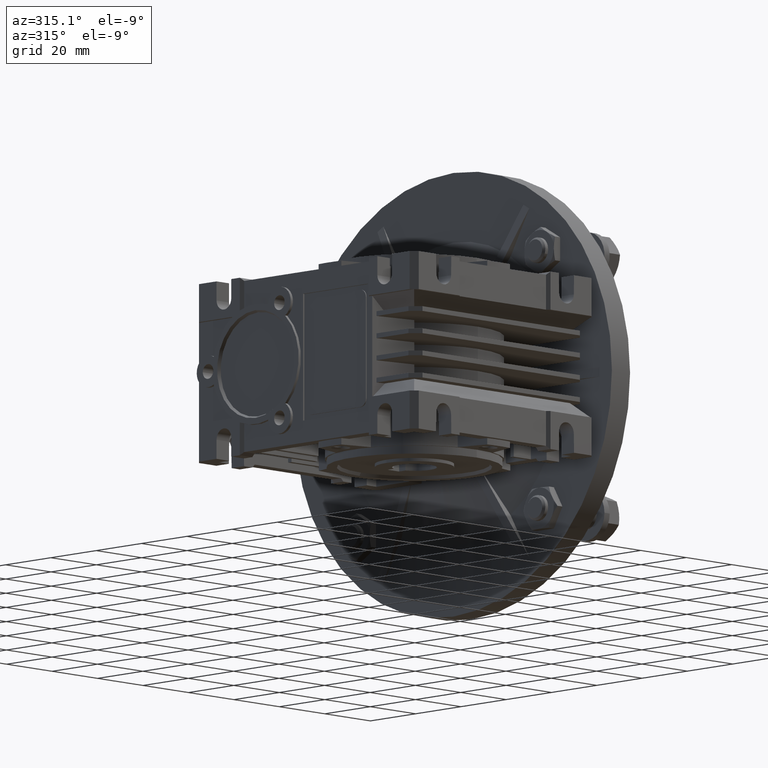
[diagram: clean part render]
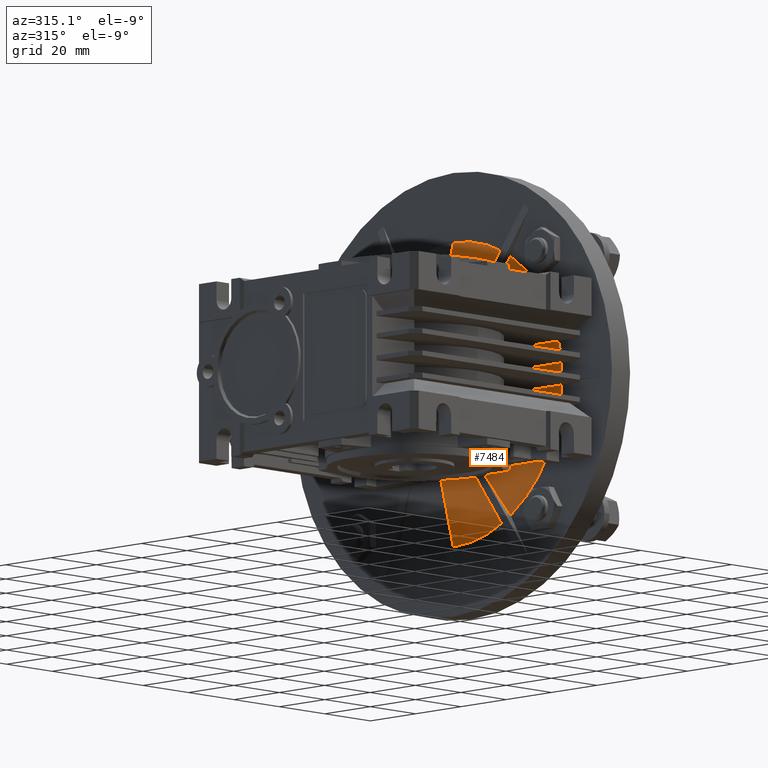
[diagram: same view with one face highlighted and labeled with its STEP entity id]
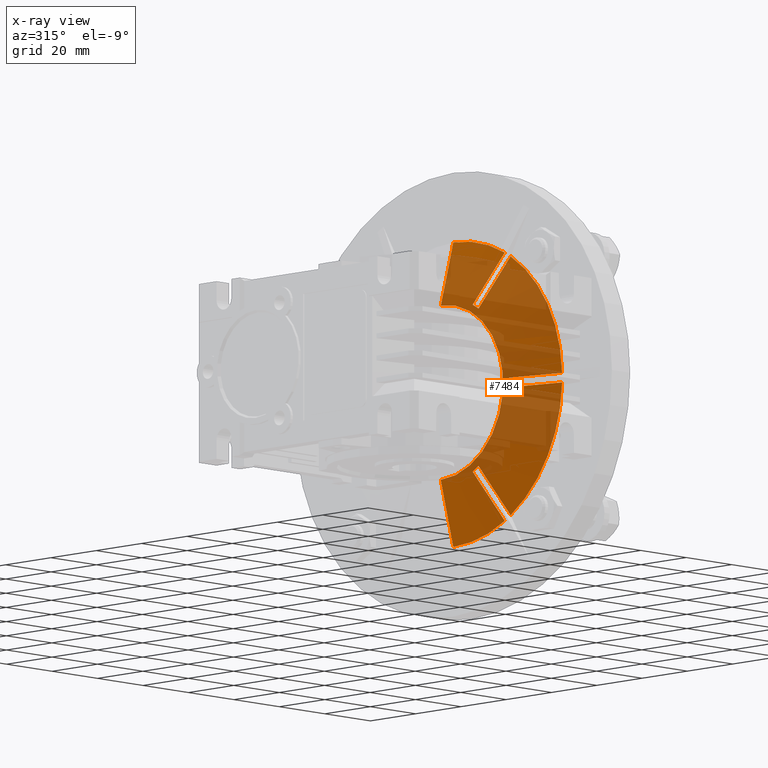
[diagram: x-ray of the same camera — body ghosted, the highlighted face saturated]
A machine part, auxiliary view. The second image highlights one B-rep face of the part: STEP entity #7484.
The next image is the same camera in x-ray: the body ghosted, the highlighted face saturated — about 62% of this face is hidden behind the body in this view.
In plain terms, the highlighted conical surface has half-angle 75 deg.
Its self-contained STEP definition (entity closure, byte-faithful):
#227 = CARTESIAN_POINT ( 'NONE',  ( 46.99999999999998579, -18.00284905092014398, 1.500000000000016209 ) ) ;
#240 = EDGE_CURVE ( 'NONE', #20638, #29126, #28008, .T. ) ;
#353 = CARTESIAN_POINT ( 'NONE',  ( 43.70208306677881183, 10.85689057402041868, 30.15683814064741597 ) ) ;
#776 = DIRECTION ( 'NONE',  ( 0.000000000000000000, 0.000000000000000000, -1.000000000000000000 ) ) ;
#844 = CARTESIAN_POINT ( 'NONE',  ( 42.05426768231239265, 30.00000000000000000, 0.000000000000000000 ) ) ;
#969 = DIRECTION ( 'NONE',  ( 0.2588190451025180749, 1.182917971378670581E-16, 0.9659258262890690894 ) ) ;
#1060 = CARTESIAN_POINT ( 'NONE',  ( 47.00000000000000000, 30.00000000000000000, -48.02627944162900064 ) ) ;
#1107 = EDGE_CURVE ( 'NONE', #3813, #19475, #20662, .T. ) ;
#1367 = DIRECTION ( 'NONE',  ( -1.000000000000000000, -6.282902781951050303E-45, -3.368533169952360378E-31 ) ) ;
#2035 = EDGE_CURVE ( 'NONE', #30000, #2848, #2413, .T. ) ;
#2121 = CARTESIAN_POINT ( 'NONE',  ( 41.50000000000000000, 30.00000000000000355, -27.50000000000000000 ) ) ;
#2241 = VERTEX_POINT ( 'NONE', #9032 ) ;
#2273 = EDGE_CURVE ( 'NONE', #8392, #4362, #17492, .T. ) ;
#2413 = B_SPLINE_CURVE_WITH_KNOTS ( 'NONE', 3,
 ( #17618, #29317, #10008, #11979 ),
 .UNSPECIFIED., .F., .F.,
 ( 4, 4 ),
 ( 8.673617379884035472E-19, 0.01912298508230932809 ),
 .UNSPECIFIED. ) ;
#2524 = VERTEX_POINT ( 'NONE', #25696 ) ;
#2848 = VERTEX_POINT ( 'NONE', #20961 ) ;
#2952 = AXIS2_PLACEMENT_3D ( 'NONE', #25897, #3659, #8711 ) ;
#3009 = VERTEX_POINT ( 'NONE', #31639 ) ;
#3607 = DIRECTION ( 'NONE',  ( -1.000000000000000000, -3.647217941450044492E-45, 2.566501462820844980E-31 ) ) ;
#3659 = DIRECTION ( 'NONE',  ( -1.000000000000000000, 0.000000000000000000, 0.000000000000000000 ) ) ;
#3756 = VERTEX_POINT ( 'NONE', #6804 ) ;
#3813 = VERTEX_POINT ( 'NONE', #16562 ) ;
#4362 = VERTEX_POINT ( 'NONE', #13218 ) ;
#4381 = B_SPLINE_CURVE_WITH_KNOTS ( 'NONE', 3,
 ( #22596, #15314, #353, #20668 ),
 .UNSPECIFIED., .F., .F.,
 ( 4, 4 ),
 ( 7.757919228897728493E-18, 0.01912298508230932115 ),
 .UNSPECIFIED. ) ;
#4550 = CARTESIAN_POINT ( 'NONE',  ( 47.00000000000000000, 30.00000000000000000, -48.02627944162900064 ) ) ;
#5094 = AXIS2_PLACEMENT_3D ( 'NONE', #28959, #1367, #8704 ) ;
#5626 = AXIS2_PLACEMENT_3D ( 'NONE', #11525, #6159, #9097 ) ;
#5811 = DIRECTION ( 'NONE',  ( 1.000000000000000000, 0.000000000000000000, 0.000000000000000000 ) ) ;
#5851 = CARTESIAN_POINT ( 'NONE',  ( 47.00000000000000000, 30.00000000000000711, 48.02627944162900064 ) ) ;
#5990 = ORIENTED_EDGE ( 'NONE', *, *, #2035, .T. ) ;
#6159 = DIRECTION ( 'NONE',  ( -1.000000000000000000, 0.000000000000000000, 0.000000000000000000 ) ) ;
#6270 = B_SPLINE_CURVE_WITH_KNOTS ( 'NONE', 3,
 ( #13287, #21369, #31268, #23158 ),
 .UNSPECIFIED., .F., .F.,
 ( 4, 4 ),
 ( 1.144391699630559363E-16, 0.01912298508230950850 ),
 .UNSPECIFIED. ) ;
#6308 = CIRCLE ( 'NONE', #17192, 29.56855515138320101 ) ;
#6396 = VECTOR ( 'NONE', #969, 1000.000000000000114 ) ;
#6478 = CARTESIAN_POINT ( 'NONE',  ( 43.70208306677879762, 10.85689057402034585, -30.15683814064730583 ) ) ;
#6804 = CARTESIAN_POINT ( 'NONE',  ( 42.05426768231237844, 0.4695165339205359389, -1.499999999999994227 ) ) ;
#7078 = DIRECTION ( 'NONE',  ( 0.000000000000000000, 0.000000000000000000, -1.000000000000000000 ) ) ;
#7484 = ADVANCED_FACE ( 'NONE', ( #28207 ), #31688, .T. ) ;
#7628 = EDGE_CURVE ( 'NONE', #2848, #30936, #6308, .T. ) ;
#7725 = CARTESIAN_POINT ( 'NONE',  ( 46.99999999999998579, 4.699537368863248687, -40.82168673212646581 ) ) ;
#7765 = CARTESIAN_POINT ( 'NONE',  ( 47.00000000000000000, 30.00000000000000000, 0.000000000000000000 ) ) ;
#8392 = VERTEX_POINT ( 'NONE', #26408 ) ;
#8614 = VERTEX_POINT ( 'NONE', #227 ) ;
#8704 = DIRECTION ( 'NONE',  ( 0.000000000000000000, 1.000000000000000000, -1.865174681370265197E-14 ) ) ;
#8711 = DIRECTION ( 'NONE',  ( 0.000000000000000000, 0.000000000000000000, -1.000000000000000000 ) ) ;
#8769 = CARTESIAN_POINT ( 'NONE',  ( 42.05426768231237844, 13.93572016128357127, -24.82414886766108353 ) ) ;
#9032 = CARTESIAN_POINT ( 'NONE',  ( 41.50000000000000000, 30.00000000000000000, 27.50000000000000000 ) ) ;
#9097 = DIRECTION ( 'NONE',  ( 0.000000000000000000, -5.345803952117682399E-15, -1.000000000000000000 ) ) ;
#9769 = VERTEX_POINT ( 'NONE', #7725 ) ;
#10008 = CARTESIAN_POINT ( 'NONE',  ( 43.70208306677879762, 13.45496678537369739, -31.65683814064731294 ) ) ;
#10685 = CARTESIAN_POINT ( 'NONE',  ( 47.00000000000000000, 30.00000000000000000, 0.000000000000000000 ) ) ;
#10971 = ORIENTED_EDGE ( 'NONE', *, *, #2273, .T. ) ;
#11402 = VERTEX_POINT ( 'NONE', #16357 ) ;
#11525 = CARTESIAN_POINT ( 'NONE',  ( 47.00000000000000000, 30.00000000000000000, 0.000000000000000000 ) ) ;
#11576 = CIRCLE ( 'NONE', #27088, 48.02627944162890827 ) ;
#11877 = CIRCLE ( 'NONE', #5626, 48.02627944162880169 ) ;
#11972 = DIRECTION ( 'NONE',  ( -1.000000000000000000, 0.000000000000000000, 0.000000000000000000 ) ) ;
#11979 = CARTESIAN_POINT ( 'NONE',  ( 42.05426768231236423, 16.53379637263691748, -26.32414886766110129 ) ) ;
#12261 = B_SPLINE_CURVE_WITH_KNOTS ( 'NONE', 3,
 ( #8769, #6478, #20937, #13956 ),
 .UNSPECIFIED., .F., .F.,
 ( 4, 4 ),
 ( 0.000000000000000000, 0.01912298508230931421 ),
 .UNSPECIFIED. ) ;
#12460 = ORIENTED_EDGE ( 'NONE', *, *, #25632, .T. ) ;
#12538 = ORIENTED_EDGE ( 'NONE', *, *, #29398, .T. ) ;
#12791 = EDGE_CURVE ( 'NONE', #3009, #8614, #30317, .T. ) ;
#12935 = CARTESIAN_POINT ( 'NONE',  ( 43.70208306677883314, -5.688142640605990508, 1.500000000000002665 ) ) ;
#13102 = CARTESIAN_POINT ( 'NONE',  ( 45.35095342076417069, -11.84551948117772824, 1.500000000000005329 ) ) ;
#13218 = CARTESIAN_POINT ( 'NONE',  ( 47.00000000000000000, 30.00000000000000711, 48.02627944162900064 ) ) ;
#13222 = ORIENTED_EDGE ( 'NONE', *, *, #26775, .T. ) ;
#13287 = CARTESIAN_POINT ( 'NONE',  ( 47.00000000000000711, -18.00284905092018661, -1.499999999999985345 ) ) ;
#13956 = CARTESIAN_POINT ( 'NONE',  ( 46.99999999999998579, 4.699537368863248687, -40.82168673212646581 ) ) ;
#15218 = CIRCLE ( 'NONE', #17280, 48.02627944162880169 ) ;
#15314 = CARTESIAN_POINT ( 'NONE',  ( 45.35095342076416358, 7.778202153734523172, 35.48928290525655171 ) ) ;
#15550 = EDGE_CURVE ( 'NONE', #19475, #8392, #20063, .T. ) ;
#15680 = DIRECTION ( 'NONE',  ( 0.2588190451025180749, 0.000000000000000000, -0.9659258262890690894 ) ) ;
#15892 = CIRCLE ( 'NONE', #31423, 29.56855515138330404 ) ;
#16357 = CARTESIAN_POINT ( 'NONE',  ( 47.00000000000000711, -18.00284905092018661, -1.499999999999985345 ) ) ;
#16551 = CARTESIAN_POINT ( 'NONE',  ( 45.35095342076414227, 10.37627836508784540, 36.98928290525645934 ) ) ;
#16562 = CARTESIAN_POINT ( 'NONE',  ( 42.05426768231239265, 13.93572016128363167, 24.82414886766121498 ) ) ;
#16834 = CARTESIAN_POINT ( 'NONE',  ( 47.00000000000000000, 30.00000000000000000, 0.000000000000000000 ) ) ;
#17082 = EDGE_CURVE ( 'NONE', #9769, #11402, #15218, .T. ) ;
#17192 = AXIS2_PLACEMENT_3D ( 'NONE', #29689, #22218, #31966 ) ;
#17280 = AXIS2_PLACEMENT_3D ( 'NONE', #16834, #11972, #7078 ) ;
#17325 = CARTESIAN_POINT ( 'NONE',  ( 42.05426768231235712, 16.53379637263701341, 26.32414886766101247 ) ) ;
#17492 = CIRCLE ( 'NONE', #2952, 48.02627944162880169 ) ;
#17618 = CARTESIAN_POINT ( 'NONE',  ( 46.99999999999997868, 7.297613580216591345, -42.32168673212650134 ) ) ;
#18181 = LINE ( 'NONE', #5851, #6396 ) ;
#18757 = ORIENTED_EDGE ( 'NONE', *, *, #1107, .T. ) ;
#19475 = VERTEX_POINT ( 'NONE', #17325 ) ;
#19703 = EDGE_CURVE ( 'NONE', #11402, #3756, #6270, .T. ) ;
#20063 = B_SPLINE_CURVE_WITH_KNOTS ( 'NONE', 3,
 ( #31141, #28875, #16551, #24002 ),
 .UNSPECIFIED., .F., .F.,
 ( 4, 4 ),
 ( 3.469446951953614189E-18, 0.01912298508230948074 ),
 .UNSPECIFIED. ) ;
#20145 = CIRCLE ( 'NONE', #29441, 27.49999999999999645 ) ;
#20459 = CARTESIAN_POINT ( 'NONE',  ( 46.99999999999997868, 7.297613580216591345, -42.32168673212650134 ) ) ;
#20583 = DIRECTION ( 'NONE',  ( 0.000000000000000000, 8.668871273704330434E-16, -1.000000000000000000 ) ) ;
#20638 = VERTEX_POINT ( 'NONE', #2121 ) ;
#20662 = CIRCLE ( 'NONE', #5094, 29.56855515138330404 ) ;
#20668 = CARTESIAN_POINT ( 'NONE',  ( 42.05426768231239265, 13.93572016128363167, 24.82414886766121498 ) ) ;
#20937 = CARTESIAN_POINT ( 'NONE',  ( 45.35095342076414937, 7.778202153734445012, -35.48928290525643803 ) ) ;
#20942 = CARTESIAN_POINT ( 'NONE',  ( 41.50000000000000000, 30.00000000000000000, 0.000000000000000000 ) ) ;
#20961 = CARTESIAN_POINT ( 'NONE',  ( 42.05426768231236423, 16.53379637263691748, -26.32414886766110129 ) ) ;
#21101 = DIRECTION ( 'NONE',  ( 0.000000000000000000, 1.000000000000000000, 0.000000000000000000 ) ) ;
#21369 = CARTESIAN_POINT ( 'NONE',  ( 45.35095342076418490, -11.84551948117778331, -1.499999999999989120 ) ) ;
#21486 = CARTESIAN_POINT ( 'NONE',  ( 42.05426768231237844, 13.93572016128357127, -24.82414886766108353 ) ) ;
#22218 = DIRECTION ( 'NONE',  ( -1.000000000000000000, -1.424694508378921656E-45, 1.604063414263024883E-31 ) ) ;
#22596 = CARTESIAN_POINT ( 'NONE',  ( 46.99999999999998579, 4.699537368863284215, 40.82168673212660792 ) ) ;
#23158 = CARTESIAN_POINT ( 'NONE',  ( 42.05426768231237844, 0.4695165339205359389, -1.499999999999994227 ) ) ;
#23324 = DIRECTION ( 'NONE',  ( -1.000000000000000000, 0.000000000000000000, 0.000000000000000000 ) ) ;
#23360 = DIRECTION ( 'NONE',  ( 1.000000000000000000, 3.154042683594194997E-17, 0.000000000000000000 ) ) ;
#24002 = CARTESIAN_POINT ( 'NONE',  ( 46.99999999999998579, 7.297613580216612661, 42.32168673212653687 ) ) ;
#24454 = EDGE_CURVE ( 'NONE', #3756, #3009, #15892, .T. ) ;
#24922 = ORIENTED_EDGE ( 'NONE', *, *, #30247, .T. ) ;
#24968 = ORIENTED_EDGE ( 'NONE', *, *, #24454, .T. ) ;
#25271 = ORIENTED_EDGE ( 'NONE', *, *, #26773, .T. ) ;
#25387 = ORIENTED_EDGE ( 'NONE', *, *, #7628, .T. ) ;
#25528 = DIRECTION ( 'NONE',  ( 0.000000000000000000, 1.000000000000000000, 1.421085471520199898E-14 ) ) ;
#25632 = EDGE_CURVE ( 'NONE', #30936, #9769, #12261, .T. ) ;
#25696 = CARTESIAN_POINT ( 'NONE',  ( 46.99999999999998579, 4.699537368863284215, 40.82168673212660792 ) ) ;
#25865 = ORIENTED_EDGE ( 'NONE', *, *, #17082, .T. ) ;
#25897 = CARTESIAN_POINT ( 'NONE',  ( 47.00000000000000000, 30.00000000000000000, 0.000000000000000000 ) ) ;
#26225 = ORIENTED_EDGE ( 'NONE', *, *, #12791, .T. ) ;
#26408 = CARTESIAN_POINT ( 'NONE',  ( 46.99999999999998579, 7.297613580216612661, 42.32168673212653687 ) ) ;
#26505 = AXIS2_PLACEMENT_3D ( 'NONE', #7765, #5811, #776 ) ;
#26562 = EDGE_LOOP ( 'NONE', ( #27357, #25271, #26582, #13222, #5990, #25387, #12460, #25865, #29287, #24968, #26225, #12538, #24922, #18757, #27650, #10971 ) ) ;
#26582 = ORIENTED_EDGE ( 'NONE', *, *, #240, .T. ) ;
#26773 = EDGE_CURVE ( 'NONE', #2241, #20638, #20145, .T. ) ;
#26775 = EDGE_CURVE ( 'NONE', #29126, #30000, #11877, .T. ) ;
#27088 = AXIS2_PLACEMENT_3D ( 'NONE', #10685, #23324, #20583 ) ;
#27357 = ORIENTED_EDGE ( 'NONE', *, *, #30155, .F. ) ;
#27650 = ORIENTED_EDGE ( 'NONE', *, *, #15550, .T. ) ;
#28008 = LINE ( 'NONE', #1060, #31995 ) ;
#28207 = FACE_OUTER_BOUND ( 'NONE', #26562, .T. ) ;
#28875 = CARTESIAN_POINT ( 'NONE',  ( 43.70208306677877630, 13.45496678537376667, 31.65683814064727741 ) ) ;
#28959 = CARTESIAN_POINT ( 'NONE',  ( 42.05426768231238555, 30.00000000000000000, 0.000000000000000000 ) ) ;
#29126 = VERTEX_POINT ( 'NONE', #4550 ) ;
#29287 = ORIENTED_EDGE ( 'NONE', *, *, #19703, .T. ) ;
#29317 = CARTESIAN_POINT ( 'NONE',  ( 45.35095342076414937, 10.37627836508779922, -36.98928290525644513 ) ) ;
#29398 = EDGE_CURVE ( 'NONE', #8614, #2524, #11576, .T. ) ;
#29441 = AXIS2_PLACEMENT_3D ( 'NONE', #20942, #23360, #21101 ) ;
#29689 = CARTESIAN_POINT ( 'NONE',  ( 42.05426768231236423, 30.00000000000000000, 0.000000000000000000 ) ) ;
#30000 = VERTEX_POINT ( 'NONE', #20459 ) ;
#30155 = EDGE_CURVE ( 'NONE', #2241, #4362, #18181, .T. ) ;
#30247 = EDGE_CURVE ( 'NONE', #2524, #3813, #4381, .T. ) ;
#30279 = CARTESIAN_POINT ( 'NONE',  ( 42.05426768231241397, 0.4695165339204006028, 1.500000000000000222 ) ) ;
#30317 = B_SPLINE_CURVE_WITH_KNOTS ( 'NONE', 3,
 ( #30279, #12935, #13102, #30445 ),
 .UNSPECIFIED., .F., .F.,
 ( 4, 4 ),
 ( 2.168404344971008627E-19, 0.01912298508230921359 ),
 .UNSPECIFIED. ) ;
#30445 = CARTESIAN_POINT ( 'NONE',  ( 46.99999999999998579, -18.00284905092014398, 1.500000000000016209 ) ) ;
#30936 = VERTEX_POINT ( 'NONE', #21486 ) ;
#31141 = CARTESIAN_POINT ( 'NONE',  ( 42.05426768231235712, 16.53379637263701341, 26.32414886766101247 ) ) ;
#31268 = CARTESIAN_POINT ( 'NONE',  ( 43.70208306677881183, -5.688142640605919453, -1.499999999999991784 ) ) ;
#31423 = AXIS2_PLACEMENT_3D ( 'NONE', #844, #3607, #25528 ) ;
#31639 = CARTESIAN_POINT ( 'NONE',  ( 42.05426768231241397, 0.4695165339204006028, 1.500000000000000222 ) ) ;
#31688 = CONICAL_SURFACE ( 'NONE', #26505, 48.02627944162900064, 1.308996938995750092 ) ;
#31966 = DIRECTION ( 'NONE',  ( 0.000000000000000000, 1.000000000000000000, 8.881784197001250746E-15 ) ) ;
#31995 = VECTOR ( 'NONE', #15680, 1000.000000000000114 ) ;